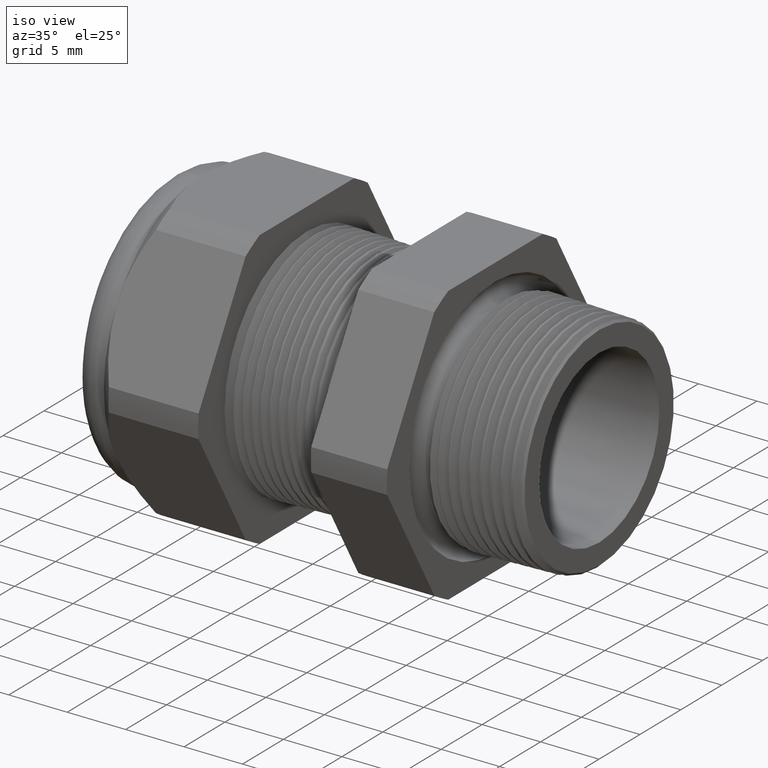
[diagram: clean part render]
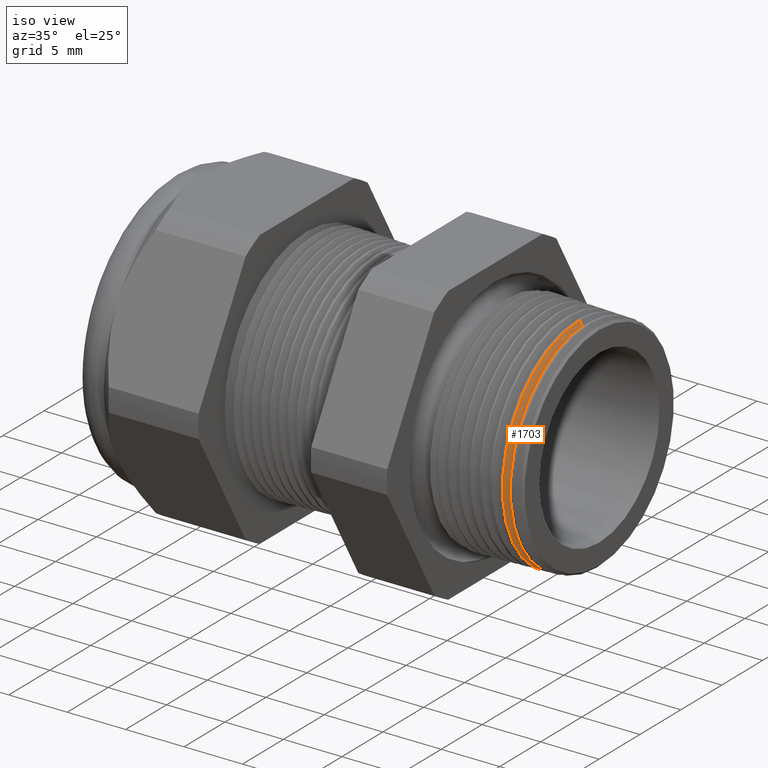
[diagram: same view with one face highlighted and labeled with its STEP entity id]
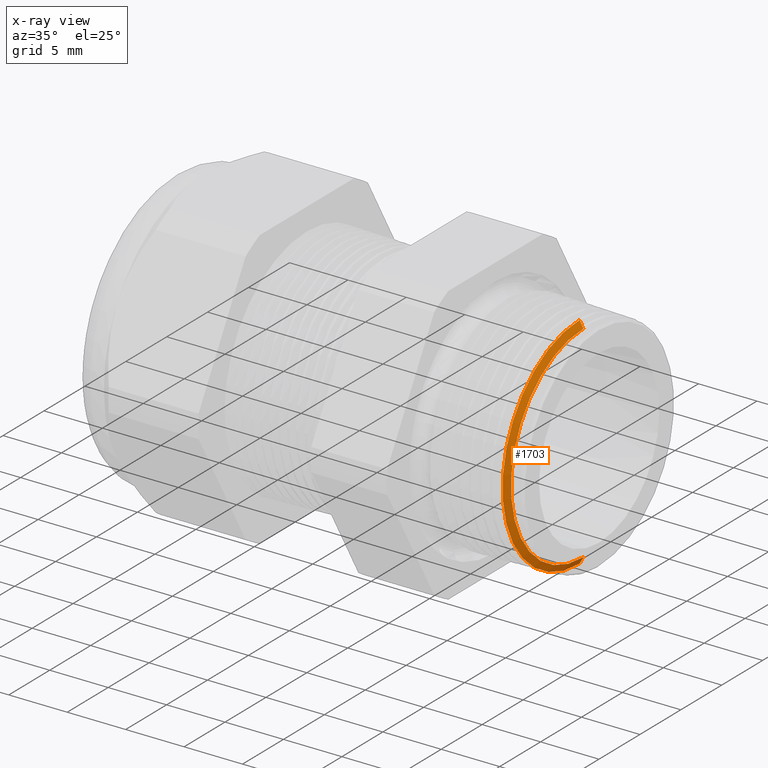
[diagram: x-ray of the same camera — body ghosted, the highlighted face saturated]
A machine part, iso view. The second image highlights one B-rep face of the part: STEP entity #1703.
The next image is the same camera in x-ray: the body ghosted, the highlighted face saturated — about 0% of this face is hidden behind the body in this view.
In plain terms, the highlighted conical surface has half-angle 61.5 deg.
Its self-contained STEP definition (entity closure, byte-faithful):
#347 = VERTEX_POINT ( 'NONE', #2396 ) ;
#349 = EDGE_CURVE ( 'NONE', #560, #347, #2395, .T. ) ;
#560 = VERTEX_POINT ( 'NONE', #2793 ) ;
#569 = VERTEX_POINT ( 'NONE', #2781 ) ;
#596 = VERTEX_POINT ( 'NONE', #2857 ) ;
#598 = EDGE_CURVE ( 'NONE', #569, #596, #2856, .T. ) ;
#837 = EDGE_CURVE ( 'NONE', #596, #347, #3346, .T. ) ;
#1703 = ADVANCED_FACE ( 'NONE', ( #4777 ), #4776, .T. ) ;
#1704 = EDGE_LOOP ( 'NONE', ( #1705, #1706, #1708, #1709 ) ) ;
#1705 = ORIENTED_EDGE ( 'NONE', *, *, #349, .F. ) ;
#1706 = ORIENTED_EDGE ( 'NONE', *, *, #1707, .F. ) ;
#1707 = EDGE_CURVE ( 'NONE', #569, #560, #4775, .T. ) ;
#1708 = ORIENTED_EDGE ( 'NONE', *, *, #598, .T. ) ;
#1709 = ORIENTED_EDGE ( 'NONE', *, *, #837, .T. ) ;
#2395 = LINE ( 'NONE', #2453, #2452 ) ;
#2396 = CARTESIAN_POINT ( 'NONE',  ( -0.02596160015483822700, 4.543821516315070200E-017, -0.3709227921828554000 ) ) ;
#2451 = DIRECTION ( 'NONE',  ( -0.4771587602596195100, 1.076240564057387400E-016, -0.8788171126619593900 ) ) ;
#2452 = VECTOR ( 'NONE', #2451, 39.37007874015748100 ) ;
#2453 = CARTESIAN_POINT ( 'NONE',  ( -0.02999999999999995400, 4.633580970323677100E-017, -0.3783605994438361000 ) ) ;
#2781 = CARTESIAN_POINT ( 'NONE',  ( -0.01347073567907512900, 0.0000000000000000000, 0.3479174816500060800 ) ) ;
#2793 = CARTESIAN_POINT ( 'NONE',  ( -0.01347073567907512900, 4.401627202238103200E-017, -0.3479174816500060800 ) ) ;
#2853 = DIRECTION ( 'NONE',  ( -0.4771587602596195100, 0.0000000000000000000, 0.8788171126619593900 ) ) ;
#2854 = VECTOR ( 'NONE', #2853, 39.37007874015748100 ) ;
#2855 = CARTESIAN_POINT ( 'NONE',  ( -0.02999999999999995400, 0.0000000000000000000, 0.3783605994438361000 ) ) ;
#2856 = LINE ( 'NONE', #2855, #2854 ) ;
#2857 = CARTESIAN_POINT ( 'NONE',  ( -0.02596160015483822700, 0.0000000000000000000, 0.3709227921828554000 ) ) ;
#3338 = DIRECTION ( 'NONE',  ( 0.0000000000000000000, 0.0000000000000000000, 1.000000000000000000 ) ) ;
#3339 = DIRECTION ( 'NONE',  ( 1.000000000000000000, 0.0000000000000000000, 0.0000000000000000000 ) ) ;
#3340 = CARTESIAN_POINT ( 'NONE',  ( -0.02596160015483822700, 0.0000000000000000000, 0.0000000000000000000 ) ) ;
#3341 = AXIS2_PLACEMENT_3D ( 'NONE', #3340, #3339, #3338 ) ;
#3346 = CIRCLE ( 'NONE', #3341, 0.3709227921828554000 ) ;
#4766 = DIRECTION ( 'NONE',  ( 0.0000000000000000000, 0.0000000000000000000, -1.000000000000000000 ) ) ;
#4767 = DIRECTION ( 'NONE',  ( 1.000000000000000000, 0.0000000000000000000, 0.0000000000000000000 ) ) ;
#4768 = CARTESIAN_POINT ( 'NONE',  ( -0.01347073567907512900, 0.0000000000000000000, 0.0000000000000000000 ) ) ;
#4769 = AXIS2_PLACEMENT_3D ( 'NONE', #4768, #4767, #4766 ) ;
#4771 = DIRECTION ( 'NONE',  ( 0.0000000000000000000, 0.0000000000000000000, 1.000000000000000000 ) ) ;
#4772 = DIRECTION ( 'NONE',  ( -1.000000000000000000, 0.0000000000000000000, 0.0000000000000000000 ) ) ;
#4773 = CARTESIAN_POINT ( 'NONE',  ( -0.02999999999999995400, 0.0000000000000000000, 0.0000000000000000000 ) ) ;
#4774 = AXIS2_PLACEMENT_3D ( 'NONE', #4773, #4772, #4771 ) ;
#4775 = CIRCLE ( 'NONE', #4769, 0.3479174816500060800 ) ;
#4776 = CONICAL_SURFACE ( 'NONE', #4774, 0.3783605994438361000, 1.073377489976500100 ) ;
#4777 = FACE_OUTER_BOUND ( 'NONE', #1704, .T. ) ;